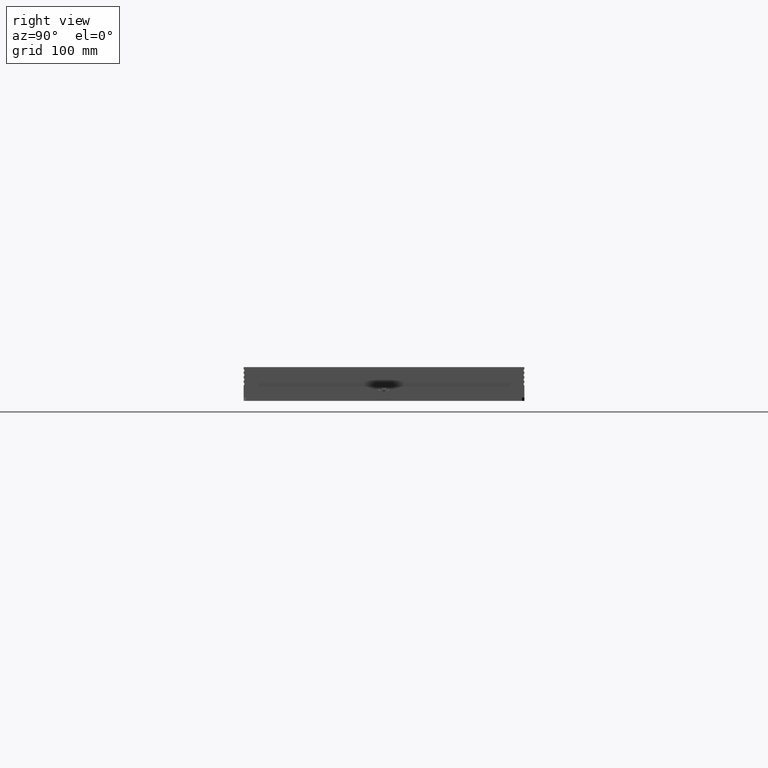
[diagram: clean part render]
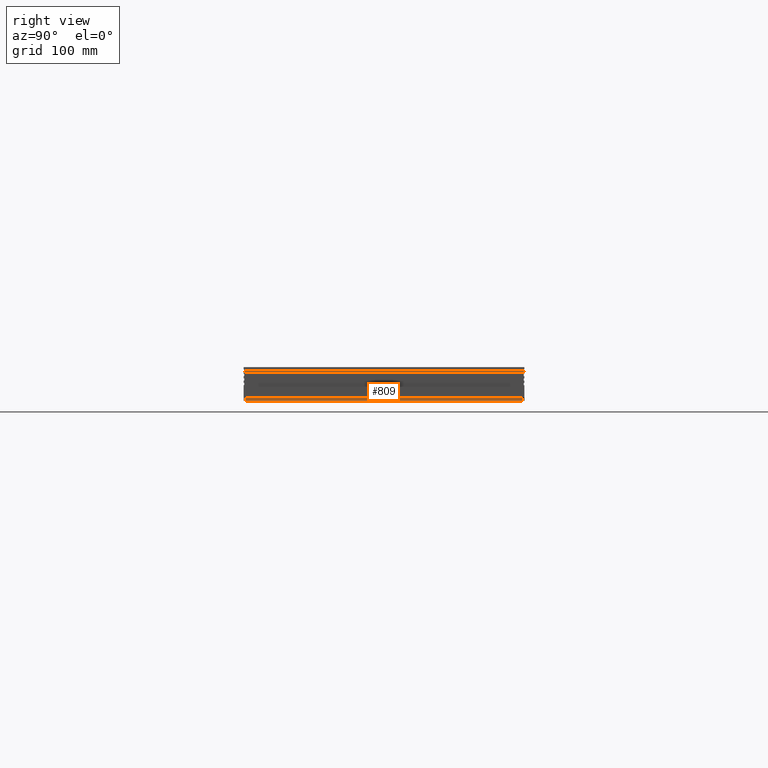
[diagram: same view with one face highlighted and labeled with its STEP entity id]
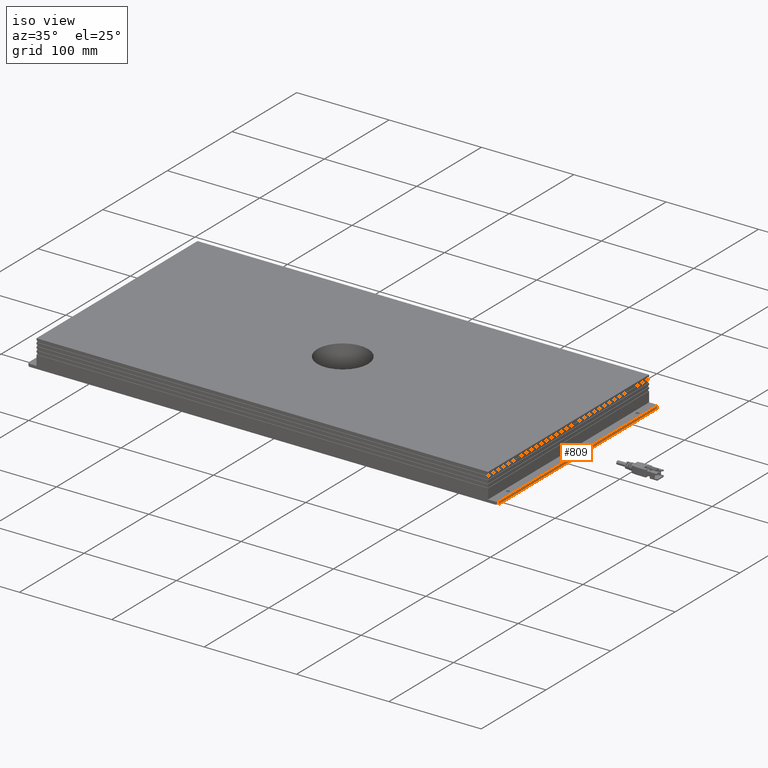
[diagram: same view with one face highlighted and labeled with its STEP entity id]
A machine part, right view. The second image highlights one B-rep face of the part: STEP entity #809.
A second angle (iso view) of the same face is appended — the face is thin or edge-on in the first view.
In plain terms, the highlighted planar face has unit normal (1, 0, 0).
Its self-contained STEP definition (entity closure, byte-faithful):
#809=ADVANCED_FACE('0:259',(#2173),#2174,.T.);
#2173=FACE_OUTER_BOUND('',#3960,.T.);
#2174=PLANE('',#3961);
#3960=EDGE_LOOP('',(#7224,#7225,#7226,#7227));
#3961=AXIS2_PLACEMENT_3D('',#7228,#7229,#7230);
#7224=ORIENTED_EDGE('',*,*,#9318,.F.);
#7225=ORIENTED_EDGE('',*,*,#9448,.T.);
#7226=ORIENTED_EDGE('',*,*,#9332,.T.);
#7227=ORIENTED_EDGE('',*,*,#9439,.F.);
#7228=CARTESIAN_POINT('',(0.2545,-0.1245,-4.35415592470179E-16));
#7229=DIRECTION('',(1.0,0.0,0.0));
#7230=DIRECTION('',(0.0,-3.49148336110938E-15,1.0));
#9318=EDGE_CURVE('0:700',#9735,#9737,#9738,.T.);
#9332=EDGE_CURVE('0:895',#9763,#9761,#9764,.T.);
#9439=EDGE_CURVE('0:889',#9737,#9761,#9937,.T.);
#9448=EDGE_CURVE('0:892',#9735,#9763,#9948,.T.);
#9735=VERTEX_POINT('',#10275);
#9737=VERTEX_POINT('',#10278);
#9738=LINE('',#10279,#10280);
#9761=VERTEX_POINT('',#10309);
#9763=VERTEX_POINT('',#10312);
#9764=LINE('',#10313,#10314);
#9937=LINE('',#10567,#10568);
#9948=LINE('',#10584,#10585);
#10275=CARTESIAN_POINT('',(0.2545,-0.1225,0.00299999999999957));
#10278=CARTESIAN_POINT('',(0.2545,0.1225,0.00300000000000043));
#10279=CARTESIAN_POINT('',(0.2545,-0.1225,0.00299999999999957));
#10280=VECTOR('',#10962,1.0);
#10309=CARTESIAN_POINT('',(0.2545,0.1225,4.28476698566271E-16));
#10312=CARTESIAN_POINT('',(0.2545,-0.1225,-4.28476698566271E-16));
#10313=CARTESIAN_POINT('',(0.2545,-0.1225,-4.28476698566271E-16));
#10314=VECTOR('',#10982,1.0);
#10567=CARTESIAN_POINT('',(0.2545,0.1225,0.00300000000000043));
#10568=VECTOR('',#11075,1.0);
#10584=CARTESIAN_POINT('',(0.2545,-0.1225,0.00299999999999957));
#10585=VECTOR('',#11081,1.0);
#10962=DIRECTION('',(0.0,1.0,3.49148336110938E-15));
#10982=DIRECTION('',(0.0,1.0,3.49148336110938E-15));
#11075=DIRECTION('',(0.0,3.49148336110938E-15,-1.0));
#11081=DIRECTION('',(0.0,3.49148336110938E-15,-1.0));